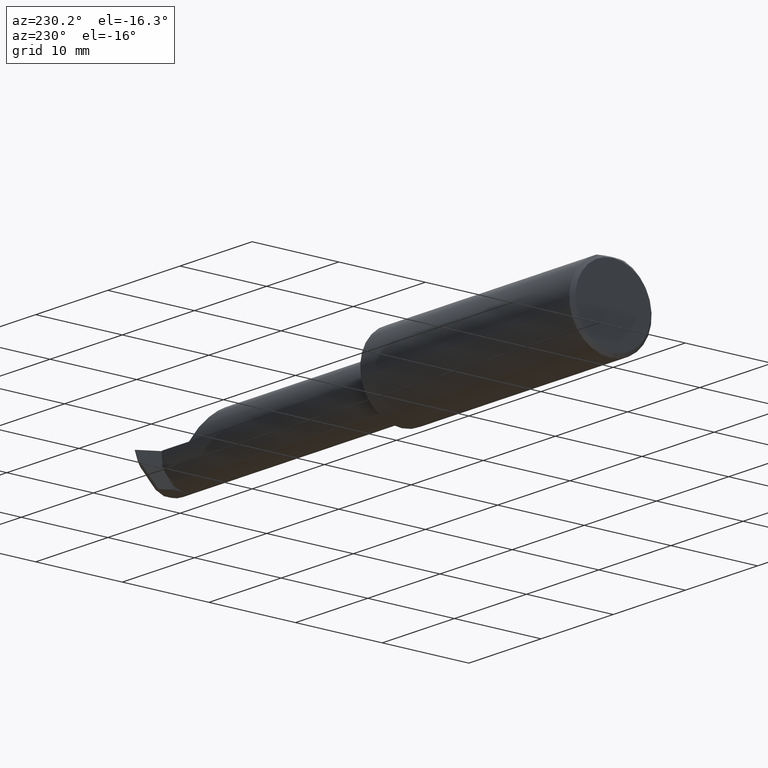
[diagram: clean part render]
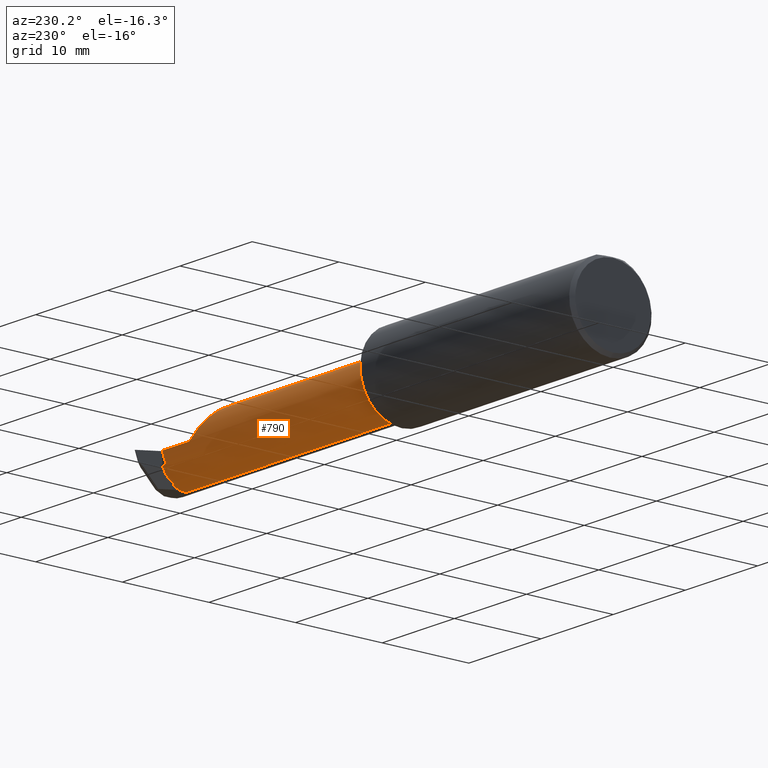
[diagram: same view with one face highlighted and labeled with its STEP entity id]
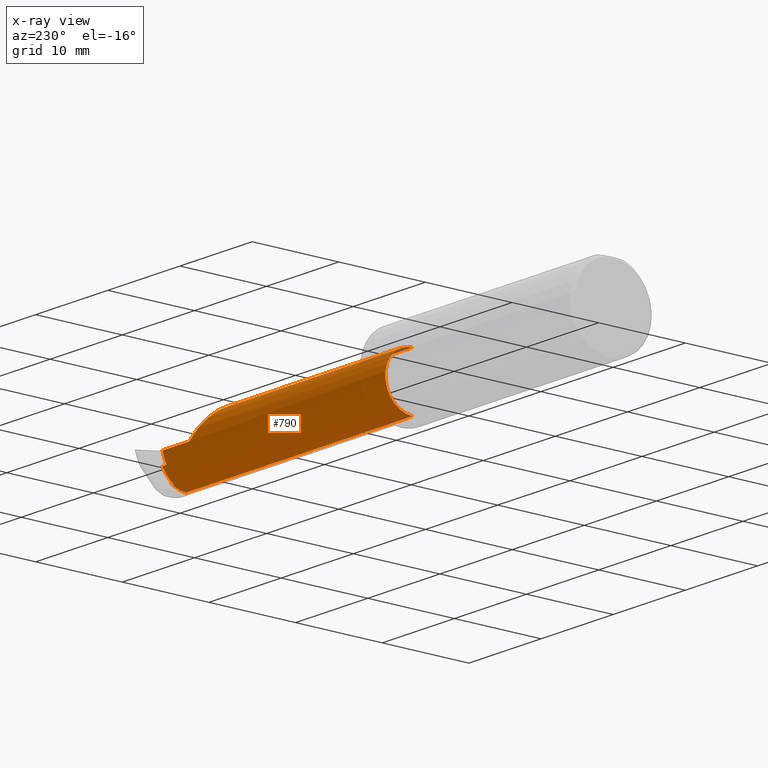
[diagram: x-ray of the same camera — body ghosted, the highlighted face saturated]
A machine part, auxiliary view. The second image highlights one B-rep face of the part: STEP entity #790.
The next image is the same camera in x-ray: the body ghosted, the highlighted face saturated — about 1% of this face is hidden behind the body in this view.
In plain terms, the highlighted cylindrical surface (edge-blend (fillet) strip) has radius 3.175 mm, axis along (-1, -0, -0).
Its self-contained STEP definition (entity closure, byte-faithful):
#20 = DIRECTION ( 'NONE',  ( 0.000000000000000000, 0.000000000000000000, 1.000000000000000000 ) ) ;
#22 = CARTESIAN_POINT ( 'NONE',  ( 2.409054084941633977, -0.01574417682531606411, -0.1114485566650211257 ) ) ;
#29 = CARTESIAN_POINT ( 'NONE',  ( 2.409171226690771661, 0.03945618158170156181, -0.05593300506159747110 ) ) ;
#32 = CARTESIAN_POINT ( 'NONE',  ( 2.125349999999999184, -0.07234999999999998377, 0.1250000000000000000 ) ) ;
#42 = EDGE_CURVE ( 'NONE', #514, #761, #227, .T. ) ;
#52 =( BOUNDED_CURVE ( )  B_SPLINE_CURVE ( 3, ( #875, #29, #329, #109 ),
 .UNSPECIFIED., .F., .T. ) 
 B_SPLINE_CURVE_WITH_KNOTS ( ( 4, 4 ),
 ( 4.411180308844337539, 4.459909643144646552 ),
 .UNSPECIFIED. ) 
 CURVE ( )  GEOMETRIC_REPRESENTATION_ITEM ( )  RATIONAL_B_SPLINE_CURVE ( ( 1.000000000000000000, 0.9998021307870518237, 0.9998021307870518237, 1.000000000000000000 ) ) 
 REPRESENTATION_ITEM ( '' )  );
#54 = CARTESIAN_POINT ( 'NONE',  ( 2.417651630723349321, -0.04248585645573448033, -0.1250000000000000278 ) ) ;
#63 = CARTESIAN_POINT ( 'NONE',  ( 2.409266663148388332, 0.03871363218546797907, -0.05735894390891729810 ) ) ;
#64 = CARTESIAN_POINT ( 'NONE',  ( 2.409054084941633977, -0.07234999999999998377, 0.000000000000000000 ) ) ;
#65 = ORIENTED_EDGE ( 'NONE', *, *, #128, .F. ) ;
#68 = AXIS2_PLACEMENT_3D ( 'NONE', #679, #842, #612 ) ;
#81 = ORIENTED_EDGE ( 'NONE', *, *, #877, .T. ) ;
#91 = CARTESIAN_POINT ( 'NONE',  ( 2.408768555666735978, 0.04119893105087686636, -0.05226509597430411408 ) ) ;
#96 = DIRECTION ( 'NONE',  ( -1.000000000000000000, -0.000000000000000000, -0.000000000000000000 ) ) ;
#99 = CARTESIAN_POINT ( 'NONE',  ( 2.125349999999999184, 0.0007108448279458398980, 0.1250000000000000278 ) ) ;
#109 = CARTESIAN_POINT ( 'NONE',  ( 2.408768555666735978, 0.04119893105087686636, -0.05226509597430411408 ) ) ;
#120 = VERTEX_POINT ( 'NONE', #169 ) ;
#126 = EDGE_LOOP ( 'NONE', ( #814, #516, #338, #65, #644, #81, #536, #961, #391, #851, #793, #156, #567 ) ) ;
#128 = EDGE_CURVE ( 'NONE', #145, #745, #769, .T. ) ;
#130 = EDGE_CURVE ( 'NONE', #698, #745, #620, .T. ) ;
#132 = VERTEX_POINT ( 'NONE', #22 ) ;
#140 = VERTEX_POINT ( 'NONE', #91 ) ;
#145 = VERTEX_POINT ( 'NONE', #622 ) ;
#156 = ORIENTED_EDGE ( 'NONE', *, *, #347, .T. ) ;
#168 = CARTESIAN_POINT ( 'NONE',  ( 1.155000000000000027, -0.07234999999999998377, 0.000000000000000000 ) ) ;
#169 = CARTESIAN_POINT ( 'NONE',  ( 2.418197582037931337, -0.07235000000000001152, -0.1250000000000000000 ) ) ;
#175 = CARTESIAN_POINT ( 'NONE',  ( 1.155000000000000027, 0.05265000000000001623, -6.429183357567480113E-17 ) ) ;
#177 = DIRECTION ( 'NONE',  ( 0.000000000000000000, 0.000000000000000000, 1.000000000000000000 ) ) ;
#184 = CARTESIAN_POINT ( 'NONE',  ( 1.155000000000000027, 0.04119893105087687329, -0.05226509597430406551 ) ) ;
#191 =( BOUNDED_CURVE ( )  B_SPLINE_CURVE ( 3, ( #719, #706, #407, #804 ),
 .UNSPECIFIED., .F., .F. ) 
 B_SPLINE_CURVE_WITH_KNOTS ( ( 4, 4 ),
 ( 1.139420741225435352, 1.570796326794896780 ),
 .UNSPECIFIED. ) 
 CURVE ( )  GEOMETRIC_REPRESENTATION_ITEM ( )  RATIONAL_B_SPLINE_CURVE ( ( 1.000000000000000000, 0.9845529495419454991, 0.9845529495419454991, 1.000000000000000000 ) ) 
 REPRESENTATION_ITEM ( '' )  );
#197 = AXIS2_PLACEMENT_3D ( 'NONE', #64, #364, #748 ) ;
#206 = VERTEX_POINT ( 'NONE', #453 ) ;
#213 = CARTESIAN_POINT ( 'NONE',  ( 1.180000000000000160, -0.07234999999999996989, -0.1250000000000000000 ) ) ;
#222 = CARTESIAN_POINT ( 'NONE',  ( 2.409054084941633977, 0.03909855666502076027, -0.05660582317468466906 ) ) ;
#223 = CARTESIAN_POINT ( 'NONE',  ( 2.409054084941633977, -0.01574417682531606411, -0.1114485566650211257 ) ) ;
#225 = CIRCLE ( 'NONE', #417, 0.1250000000000000000 ) ;
#227 =( BOUNDED_CURVE ( )  B_SPLINE_CURVE ( 3, ( #743, #63, #585, #222 ),
 .UNSPECIFIED., .F., .T. ) 
 B_SPLINE_CURVE_WITH_KNOTS ( ( 4, 4 ),
 ( 3.446885897117472730, 3.457035344740369442 ),
 .UNSPECIFIED. ) 
 CURVE ( )  GEOMETRIC_REPRESENTATION_ITEM ( )  RATIONAL_B_SPLINE_CURVE ( ( 1.000000000000000000, 0.9999914157445015661, 0.9999914157445015661, 1.000000000000000000 ) ) 
 REPRESENTATION_ITEM ( '' )  );
#245 = CARTESIAN_POINT ( 'NONE',  ( 1.155000000000000027, -0.07234999999999998377, 0.1250000000000000000 ) ) ;
#252 = CARTESIAN_POINT ( 'NONE',  ( 2.409370448767462314, 0.03851830851078916901, -0.05773402954892806194 ) ) ;
#315 = EDGE_CURVE ( 'NONE', #120, #964, #529, .T. ) ;
#323 = VECTOR ( 'NONE', #855, 39.37007874015748143 ) ;
#329 = CARTESIAN_POINT ( 'NONE',  ( 2.408970555950634918, 0.04034989926761259338, -0.05410966642080770189 ) ) ;
#330 = VERTEX_POINT ( 'NONE', #648 ) ;
#336 = AXIS2_PLACEMENT_3D ( 'NONE', #168, #685, #20 ) ;
#338 = ORIENTED_EDGE ( 'NONE', *, *, #130, .T. ) ;
#347 = EDGE_CURVE ( 'NONE', #761, #132, #636, .T. ) ;
#364 = DIRECTION ( 'NONE',  ( -1.000000000000000000, -0.000000000000000000, -0.000000000000000000 ) ) ;
#378 = DIRECTION ( 'NONE',  ( -1.000000000000000000, -0.000000000000000000, -0.000000000000000000 ) ) ;
#391 = ORIENTED_EDGE ( 'NONE', *, *, #579, .F. ) ;
#407 = CARTESIAN_POINT ( 'NONE',  ( 2.391724317005160749, 0.05265000000000001623, -0.01811476426934102713 ) ) ;
#410 = EDGE_CURVE ( 'NONE', #132, #964, #732, .T. ) ;
#417 = AXIS2_PLACEMENT_3D ( 'NONE', #699, #858, #177 ) ;
#427 = CARTESIAN_POINT ( 'NONE',  ( 2.250000000000000000, 0.05264950999903971612, 0.0003499999999991848933 ) ) ;
#453 = CARTESIAN_POINT ( 'NONE',  ( 2.385548931050876842, 0.04119893105087687329, -0.05226509597430407938 ) ) ;
#469 = LINE ( 'NONE', #775, #829 ) ;
#474 = DIRECTION ( 'NONE',  ( -1.000000000000000000, -0.000000000000000000, -0.000000000000000000 ) ) ;
#502 = EDGE_CURVE ( 'NONE', #120, #698, #469, .T. ) ;
#509 = CARTESIAN_POINT ( 'NONE',  ( 2.418197582037931337, -0.07235000000000001152, -0.1250000000000000000 ) ) ;
#514 = VERTEX_POINT ( 'NONE', #252 ) ;
#516 = ORIENTED_EDGE ( 'NONE', *, *, #502, .T. ) ;
#523 = CARTESIAN_POINT ( 'NONE',  ( 2.413734622005796027, 0.008361908784097661293, -0.09544939905744566355 ) ) ;
#529 =( BOUNDED_CURVE ( )  B_SPLINE_CURVE ( 3, ( #509, #54, #900, #576 ),
 .UNSPECIFIED., .F., .F. ) 
 B_SPLINE_CURVE_WITH_KNOTS ( ( 4, 4 ),
 ( 3.320488901919211866, 4.022422357086396616 ),
 .UNSPECIFIED. ) 
 CURVE ( )  GEOMETRIC_REPRESENTATION_ITEM ( )  RATIONAL_B_SPLINE_CURVE ( ( 1.000000000000000000, 0.9593605234527340375, 0.9593605234527340375, 1.000000000000000000 ) ) 
 REPRESENTATION_ITEM ( '' )  );
#534 = EDGE_CURVE ( 'NONE', #206, #543, #191, .T. ) ;
#536 = ORIENTED_EDGE ( 'NONE', *, *, #573, .T. ) ;
#543 = VERTEX_POINT ( 'NONE', #783 ) ;
#555 = CARTESIAN_POINT ( 'NONE',  ( 2.250000000000000000, 0.05264950999903971612, 0.0003499999999991848933 ) ) ;
#567 = ORIENTED_EDGE ( 'NONE', *, *, #410, .T. ) ;
#573 = EDGE_CURVE ( 'NONE', #330, #543, #867, .T. ) ;
#576 = CARTESIAN_POINT ( 'NONE',  ( 2.413734622005796027, 0.008361908784097661293, -0.09544939905744566355 ) ) ;
#579 = EDGE_CURVE ( 'NONE', #140, #206, #952, .T. ) ;
#585 = CARTESIAN_POINT ( 'NONE',  ( 2.409161207634521684, 0.03890704989722559154, -0.05698287188920451996 ) ) ;
#590 = EDGE_CURVE ( 'NONE', #514, #140, #52, .T. ) ;
#612 = DIRECTION ( 'NONE',  ( 0.000000000000000000, 0.000000000000000000, -1.000000000000000000 ) ) ;
#615 = CARTESIAN_POINT ( 'NONE',  ( 2.176939441571127176, 0.05244493963352191840, 0.07341055842887181382 ) ) ;
#620 = CIRCLE ( 'NONE', #68, 0.1250000000000000000 ) ;
#622 = CARTESIAN_POINT ( 'NONE',  ( 2.125349999999999184, -0.07234999999999998377, 0.1250000000000000000 ) ) ;
#636 = CIRCLE ( 'NONE', #197, 0.1250000000000000000 ) ;
#644 = ORIENTED_EDGE ( 'NONE', *, *, #865, .F. ) ;
#648 = CARTESIAN_POINT ( 'NONE',  ( 2.250000000000000000, 0.05265000000000000235, -6.429183357567478880E-17 ) ) ;
#654 =( BOUNDED_CURVE ( )  B_SPLINE_CURVE ( 3, ( #555, #615, #99, #32 ),
 .UNSPECIFIED., .F., .T. ) 
 B_SPLINE_CURVE_WITH_KNOTS ( ( 4, 4 ),
 ( 4.715188984043361842, 6.283185307179586232 ),
 .UNSPECIFIED. ) 
 CURVE ( )  GEOMETRIC_REPRESENTATION_ITEM ( )  RATIONAL_B_SPLINE_CURVE ( ( 1.000000000000000000, 0.8053973591226777362, 0.8053973591226777362, 1.000000000000000000 ) ) 
 REPRESENTATION_ITEM ( '' )  );
#674 = CARTESIAN_POINT ( 'NONE',  ( 2.413075199203178922, 0.0009645913569521091411, -0.1017045626867887076 ) ) ;
#679 = CARTESIAN_POINT ( 'NONE',  ( 1.180000000000000160, -0.07234999999999998377, 0.000000000000000000 ) ) ;
#685 = DIRECTION ( 'NONE',  ( -1.000000000000000000, -0.000000000000000000, -0.000000000000000000 ) ) ;
#687 = CARTESIAN_POINT ( 'NONE',  ( 2.411507999980803341, -0.007106926527362874245, -0.1070616118923673199 ) ) ;
#698 = VERTEX_POINT ( 'NONE', #213 ) ;
#699 = CARTESIAN_POINT ( 'NONE',  ( 2.250000000000000000, -0.07234999999999998377, 0.000000000000000000 ) ) ;
#706 = CARTESIAN_POINT ( 'NONE',  ( 2.388524533471080957, 0.04877309019558891817, -0.03580979902212567262 ) ) ;
#719 = CARTESIAN_POINT ( 'NONE',  ( 2.385548931050876842, 0.04119893105087687329, -0.05226509597430407938 ) ) ;
#732 =( BOUNDED_CURVE ( )  B_SPLINE_CURVE ( 3, ( #223, #687, #674, #523 ),
 .UNSPECIFIED., .F., .F. ) 
 B_SPLINE_CURVE_WITH_KNOTS ( ( 4, 4 ),
 ( 2.826149962439216790, 3.058127945359532696 ),
 .UNSPECIFIED. ) 
 CURVE ( )  GEOMETRIC_REPRESENTATION_ITEM ( )  RATIONAL_B_SPLINE_CURVE ( ( 1.000000000000000000, 0.9955205433440618146, 0.9955205433440618146, 1.000000000000000000 ) ) 
 REPRESENTATION_ITEM ( '' )  );
#743 = CARTESIAN_POINT ( 'NONE',  ( 2.409370448767462314, 0.03851830851078916901, -0.05773402954892806194 ) ) ;
#745 = VERTEX_POINT ( 'NONE', #815 ) ;
#748 = DIRECTION ( 'NONE',  ( 0.000000000000000000, 4.439252989704427977E-15, -1.000000000000000000 ) ) ;
#756 = CARTESIAN_POINT ( 'NONE',  ( 2.409054084941633977, 0.03909855666502076027, -0.05660582317468466906 ) ) ;
#761 = VERTEX_POINT ( 'NONE', #756 ) ;
#762 = CYLINDRICAL_SURFACE ( 'NONE', #336, 0.1250000000000000000 ) ;
#769 = LINE ( 'NONE', #245, #945 ) ;
#775 = CARTESIAN_POINT ( 'NONE',  ( 1.155000000000000027, -0.07234999999999996989, -0.1250000000000000000 ) ) ;
#783 = CARTESIAN_POINT ( 'NONE',  ( 2.395000000000000018, 0.05265000000000001623, 0.000000000000000000 ) ) ;
#790 = ADVANCED_FACE ( 'NONE', ( #913 ), #762, .T. ) ;
#793 = ORIENTED_EDGE ( 'NONE', *, *, #42, .T. ) ;
#804 = CARTESIAN_POINT ( 'NONE',  ( 2.395000000000000018, 0.05265000000000001623, 0.000000000000000000 ) ) ;
#814 = ORIENTED_EDGE ( 'NONE', *, *, #315, .F. ) ;
#815 = CARTESIAN_POINT ( 'NONE',  ( 1.180000000000000160, -0.07234999999999998377, 0.1250000000000000000 ) ) ;
#829 = VECTOR ( 'NONE', #96, 39.37007874015748143 ) ;
#842 = DIRECTION ( 'NONE',  ( 1.000000000000000000, 0.000000000000000000, 0.000000000000000000 ) ) ;
#851 = ORIENTED_EDGE ( 'NONE', *, *, #590, .F. ) ;
#855 = DIRECTION ( 'NONE',  ( 1.000000000000000000, 0.000000000000000000, 0.000000000000000000 ) ) ;
#858 = DIRECTION ( 'NONE',  ( -1.000000000000000000, -0.000000000000000000, -0.000000000000000000 ) ) ;
#865 = EDGE_CURVE ( 'NONE', #976, #145, #654, .T. ) ;
#867 = LINE ( 'NONE', #175, #323 ) ;
#875 = CARTESIAN_POINT ( 'NONE',  ( 2.409370448767462314, 0.03851830851078916901, -0.05773402954892806194 ) ) ;
#877 = EDGE_CURVE ( 'NONE', #976, #330, #225, .T. ) ;
#880 = VECTOR ( 'NONE', #474, 39.37007874015748143 ) ;
#887 = CARTESIAN_POINT ( 'NONE',  ( 2.413734622005796027, 0.008361908784097661293, -0.09544939905744566355 ) ) ;
#900 = CARTESIAN_POINT ( 'NONE',  ( 2.416100958887602790, -0.01444220765322596148, -0.1147325352947253380 ) ) ;
#913 = FACE_OUTER_BOUND ( 'NONE', #126, .T. ) ;
#945 = VECTOR ( 'NONE', #378, 39.37007874015748143 ) ;
#952 = LINE ( 'NONE', #184, #880 ) ;
#961 = ORIENTED_EDGE ( 'NONE', *, *, #534, .F. ) ;
#964 = VERTEX_POINT ( 'NONE', #887 ) ;
#976 = VERTEX_POINT ( 'NONE', #427 ) ;